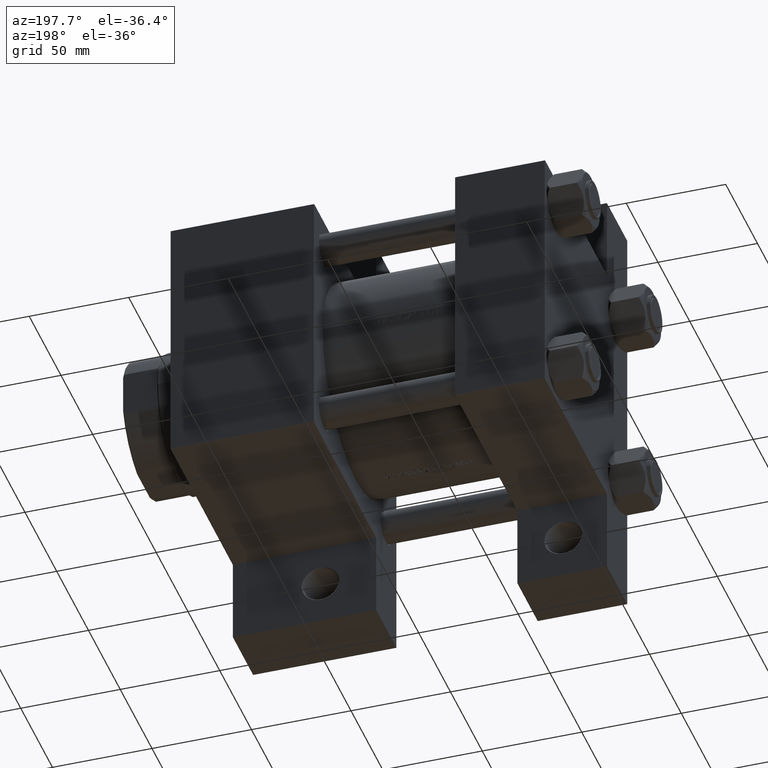
[diagram: clean part render]
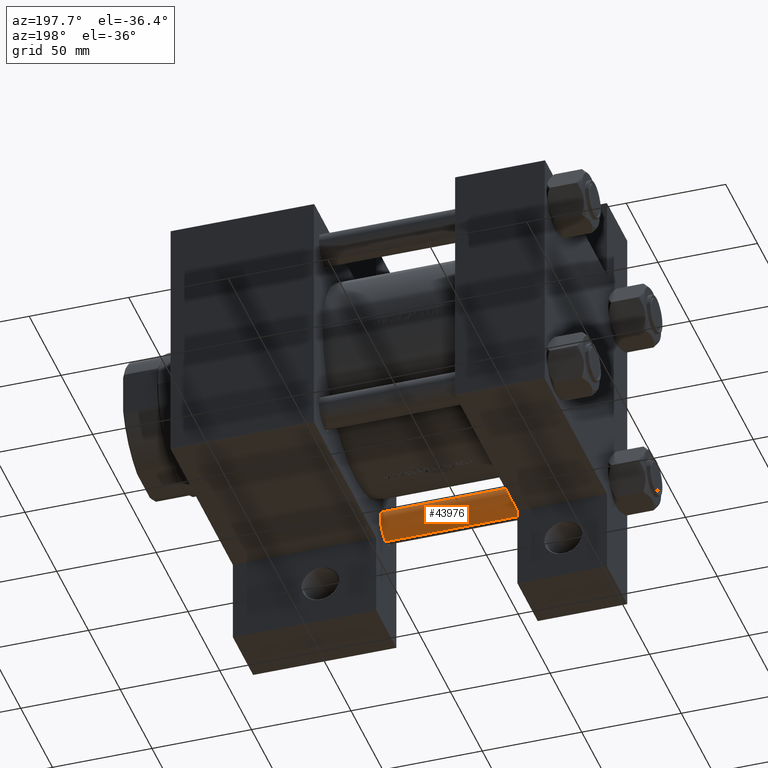
[diagram: same view with one face highlighted and labeled with its STEP entity id]
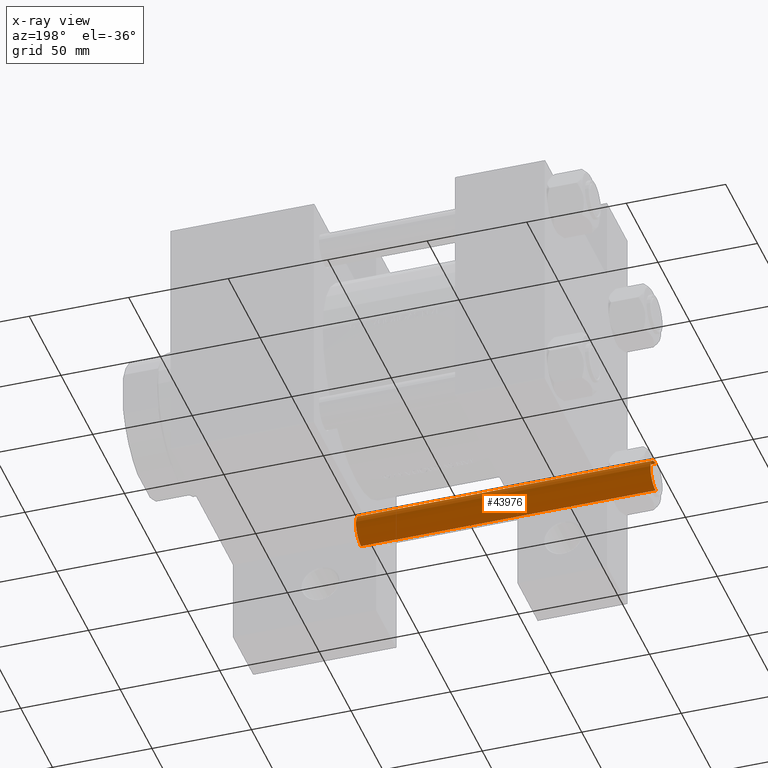
[diagram: x-ray of the same camera — body ghosted, the highlighted face saturated]
A machine part, auxiliary view. The second image highlights one B-rep face of the part: STEP entity #43976.
The next image is the same camera in x-ray: the body ghosted, the highlighted face saturated — about 0% of this face is hidden behind the body in this view.
In plain terms, the highlighted cylindrical surface (edge-blend (fillet) strip) has radius 8 mm, axis along (-1, 0, 0).
Its self-contained STEP definition (entity closure, byte-faithful):
#2651 = CARTESIAN_POINT ( 'NONE',  ( -8.000000000000000000, 0.000000000000000000, 148.5000000000000000 ) ) ;
#3817 = AXIS2_PLACEMENT_3D ( 'NONE', #22808, #25985, #30103 ) ;
#5956 = EDGE_CURVE ( 'NONE', #32979, #7952, #41818, .T. ) ;
#6761 = EDGE_CURVE ( 'NONE', #32943, #34715, #45543, .T. ) ;
#7952 = VERTEX_POINT ( 'NONE', #28802 ) ;
#8485 = CIRCLE ( 'NONE', #3817, 8.000000000000000000 ) ;
#9062 = CARTESIAN_POINT ( 'NONE',  ( 8.000000000000000000, 9.797174393178825657E-16, 149.0000000000000000 ) ) ;
#9693 = DIRECTION ( 'NONE',  ( 1.000000000000000000, 0.000000000000000000, 0.000000000000000000 ) ) ;
#11654 = DIRECTION ( 'NONE',  ( -0.000000000000000000, -0.000000000000000000, -1.000000000000000000 ) ) ;
#13171 = DIRECTION ( 'NONE',  ( -0.000000000000000000, -0.000000000000000000, -1.000000000000000000 ) ) ;
#17929 = CYLINDRICAL_SURFACE ( 'NONE', #28826, 8.000000000000000000 ) ;
#18395 = CIRCLE ( 'NONE', #31586, 8.000000000000000000 ) ;
#18737 = VECTOR ( 'NONE', #11654, 1000.000000000000000 ) ;
#22808 = CARTESIAN_POINT ( 'NONE',  ( 0.000000000000000000, 0.000000000000000000, 0.5000000000000281997 ) ) ;
#23140 = ORIENTED_EDGE ( 'NONE', *, *, #27874, .T. ) ;
#24055 = DIRECTION ( 'NONE',  ( 0.000000000000000000, 0.000000000000000000, -1.000000000000000000 ) ) ;
#25985 = DIRECTION ( 'NONE',  ( -0.000000000000000000, -0.000000000000000000, 1.000000000000000000 ) ) ;
#27635 = ORIENTED_EDGE ( 'NONE', *, *, #6761, .F. ) ;
#27874 = EDGE_CURVE ( 'NONE', #32943, #32979, #18395, .T. ) ;
#28802 = CARTESIAN_POINT ( 'NONE',  ( -8.000000000000000000, 0.000000000000000000, 0.5000000000000281997 ) ) ;
#28826 = AXIS2_PLACEMENT_3D ( 'NONE', #32779, #47593, #33025 ) ;
#30103 = DIRECTION ( 'NONE',  ( 1.000000000000000000, 0.000000000000000000, 0.000000000000000000 ) ) ;
#31586 = AXIS2_PLACEMENT_3D ( 'NONE', #35497, #24055, #9693 ) ;
#32779 = CARTESIAN_POINT ( 'NONE',  ( 0.000000000000000000, 0.000000000000000000, 149.0000000000000000 ) ) ;
#32943 = VERTEX_POINT ( 'NONE', #38878 ) ;
#32979 = VERTEX_POINT ( 'NONE', #2651 ) ;
#33025 = DIRECTION ( 'NONE',  ( -1.000000000000000000, 0.000000000000000000, 0.000000000000000000 ) ) ;
#34176 = ORIENTED_EDGE ( 'NONE', *, *, #5956, .T. ) ;
#34715 = VERTEX_POINT ( 'NONE', #43687 ) ;
#35497 = CARTESIAN_POINT ( 'NONE',  ( 0.000000000000000000, 0.000000000000000000, 148.5000000000000000 ) ) ;
#37686 = CARTESIAN_POINT ( 'NONE',  ( -8.000000000000000000, 0.000000000000000000, 149.0000000000000000 ) ) ;
#38626 = EDGE_CURVE ( 'NONE', #7952, #34715, #8485, .T. ) ;
#38878 = CARTESIAN_POINT ( 'NONE',  ( 8.000000000000000000, 9.797174393178825657E-16, 148.5000000000000000 ) ) ;
#40310 = FACE_OUTER_BOUND ( 'NONE', #47059, .T. ) ;
#41818 = LINE ( 'NONE', #37686, #18737 ) ;
#42074 = VECTOR ( 'NONE', #13171, 1000.000000000000000 ) ;
#43511 = ORIENTED_EDGE ( 'NONE', *, *, #38626, .T. ) ;
#43687 = CARTESIAN_POINT ( 'NONE',  ( 8.000000000000000000, 9.797174393178825657E-16, 0.5000000000000281997 ) ) ;
#43976 = ADVANCED_FACE ( 'NONE', ( #40310 ), #17929, .T. ) ;
#45543 = LINE ( 'NONE', #9062, #42074 ) ;
#47059 = EDGE_LOOP ( 'NONE', ( #27635, #23140, #34176, #43511 ) ) ;
#47593 = DIRECTION ( 'NONE',  ( -0.000000000000000000, -0.000000000000000000, -1.000000000000000000 ) ) ;